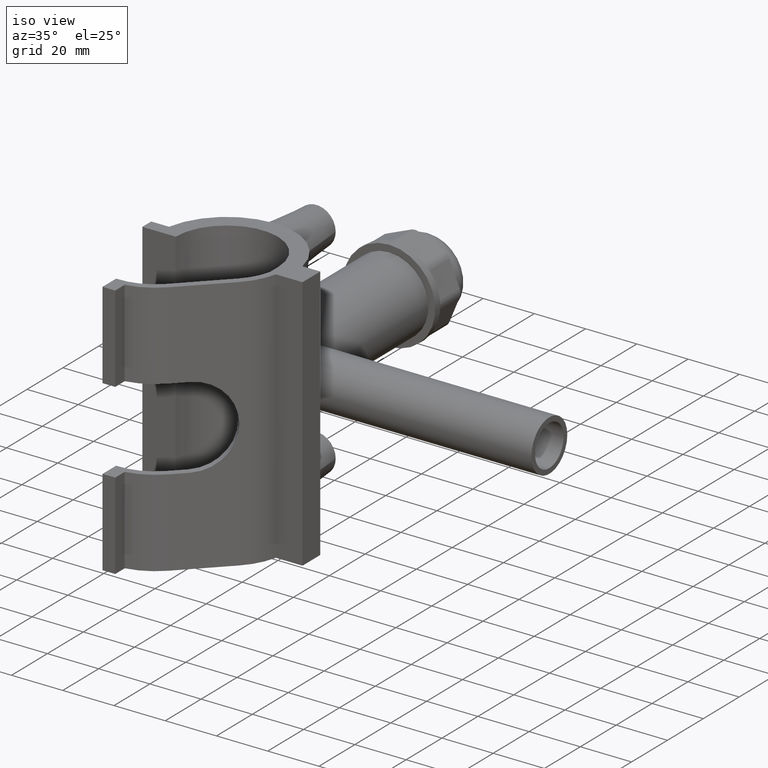
[diagram: clean part render]
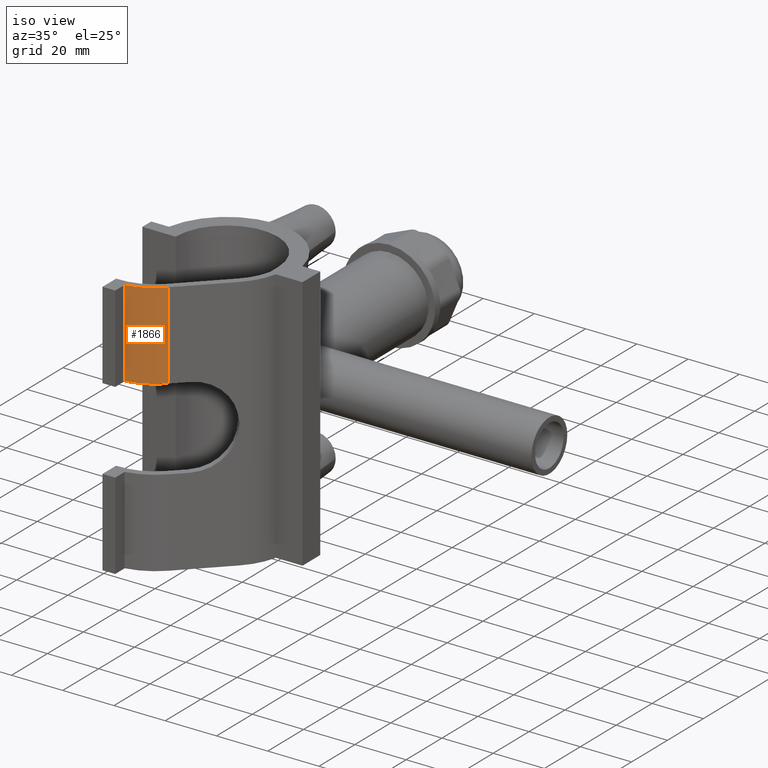
[diagram: same view with one face highlighted and labeled with its STEP entity id]
A machine part, iso view. The second image highlights one B-rep face of the part: STEP entity #1866.
In plain terms, the highlighted cylindrical surface (partial cylindrical patch) has radius 23.125 mm, axis along (0, 0, -1).
Its self-contained STEP definition (entity closure, byte-faithful):
#167=LINE('',#3595,#312);
#170=LINE('',#3602,#315);
#312=VECTOR('',#2565,34.);
#315=VECTOR('',#2572,34.);
#408=CYLINDRICAL_SURFACE('',#2063,23.1250457296622);
#512=FACE_OUTER_BOUND('',#646,.T.);
#646=EDGE_LOOP('',(#1638,#1639,#1640,#1641));
#721=CIRCLE('',#2038,23.1250457296622);
#732=CIRCLE('',#2064,23.1250457296622);
#872=VERTEX_POINT('',#3517);
#873=VERTEX_POINT('',#3519);
#899=VERTEX_POINT('',#3593);
#901=VERTEX_POINT('',#3601);
#1111=EDGE_CURVE('',#873,#872,#721,.T.);
#1149=EDGE_CURVE('',#899,#872,#167,.T.);
#1152=EDGE_CURVE('',#901,#873,#170,.T.);
#1155=EDGE_CURVE('',#901,#899,#732,.T.);
#1638=ORIENTED_EDGE('',*,*,#1111,.T.);
#1639=ORIENTED_EDGE('',*,*,#1149,.F.);
#1640=ORIENTED_EDGE('',*,*,#1155,.F.);
#1641=ORIENTED_EDGE('',*,*,#1152,.T.);
#1866=ADVANCED_FACE('',(#512),#408,.T.);
#2038=AXIS2_PLACEMENT_3D('',#3520,#2495,#2496);
#2063=AXIS2_PLACEMENT_3D('',#3606,#2578,#2579);
#2064=AXIS2_PLACEMENT_3D('',#3607,#2580,#2581);
#2495=DIRECTION('center_axis',(1.47196168176384E-16,1.47196167826824E-16,
1.));
#2496=DIRECTION('ref_axis',(-0.0453209175537758,-0.998972479316665,0.));
#2565=DIRECTION('',(0.,0.,-1.));
#2572=DIRECTION('',(0.,0.,-1.));
#2578=DIRECTION('center_axis',(0.,0.,-1.));
#2579=DIRECTION('ref_axis',(-0.0453209175537758,-0.998972479316665,0.));
#2580=DIRECTION('center_axis',(0.,0.,1.));
#2581=DIRECTION('ref_axis',(-0.0453209175537758,-0.998972479316665,0.));
#3517=CARTESIAN_POINT('',(-7.76644282218797E-8,-32.7037533402186,16.));
#3519=CARTESIAN_POINT('',(-12.4499249998828,-39.1453518956896,16.));
#3520=CARTESIAN_POINT('Origin',(-16.3518767089415,-16.3518766701093,16.));
#3593=CARTESIAN_POINT('',(-7.76644282218797E-8,-32.7037533402186,50.));
#3595=CARTESIAN_POINT('',(-7.76644282218797E-8,-32.7037533402186,50.));
#3601=CARTESIAN_POINT('',(-12.4499249998828,-39.1453518956896,50.));
#3602=CARTESIAN_POINT('',(-12.4499249998828,-39.1453518956896,50.));
#3606=CARTESIAN_POINT('Origin',(-16.3518767089415,-16.3518766701093,50.));
#3607=CARTESIAN_POINT('Origin',(-16.3518767089415,-16.3518766701093,50.));